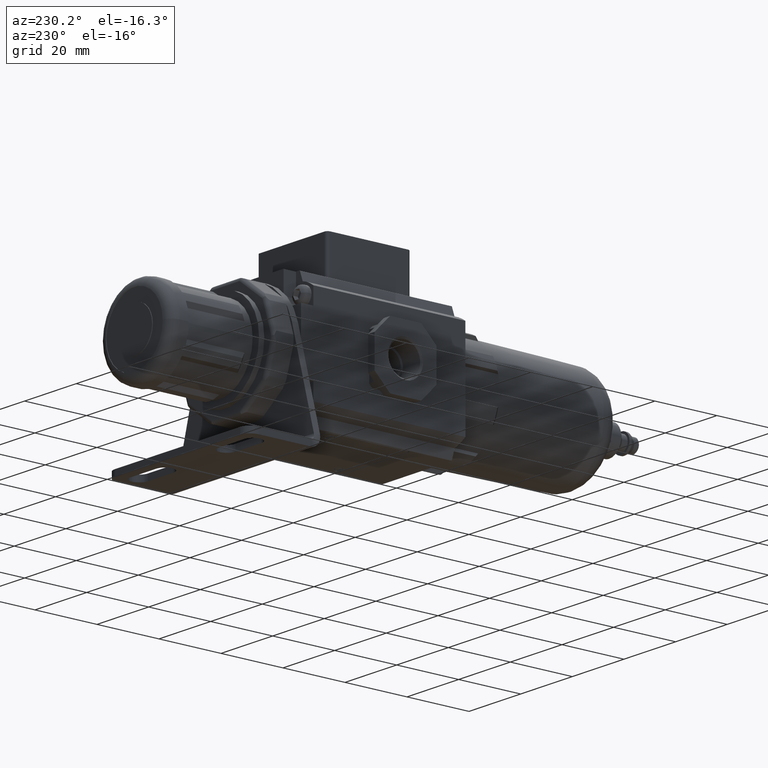
[diagram: clean part render]
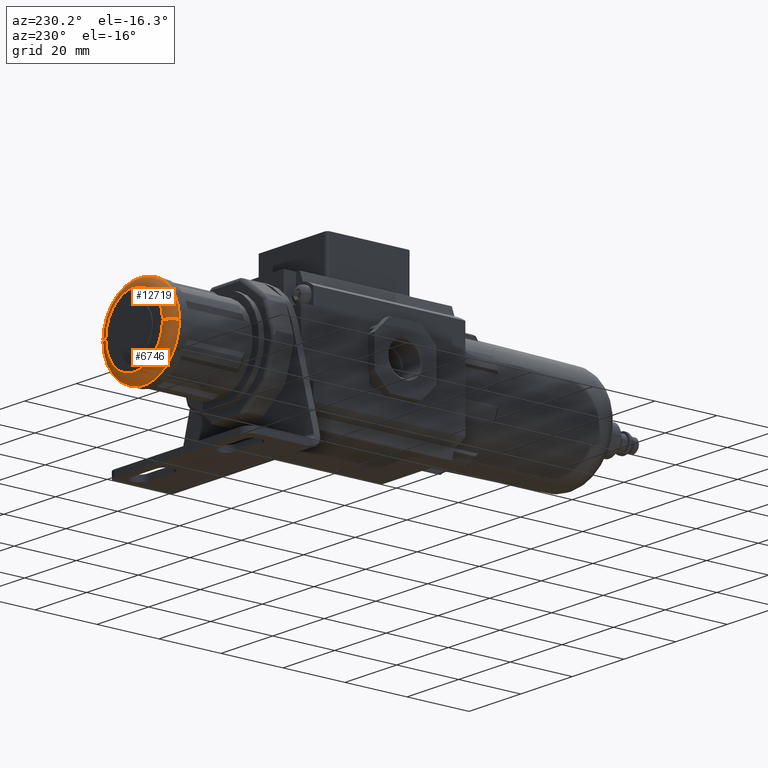
[diagram: same view with one multi-face feature highlighted, each face labeled with its STEP entity id]
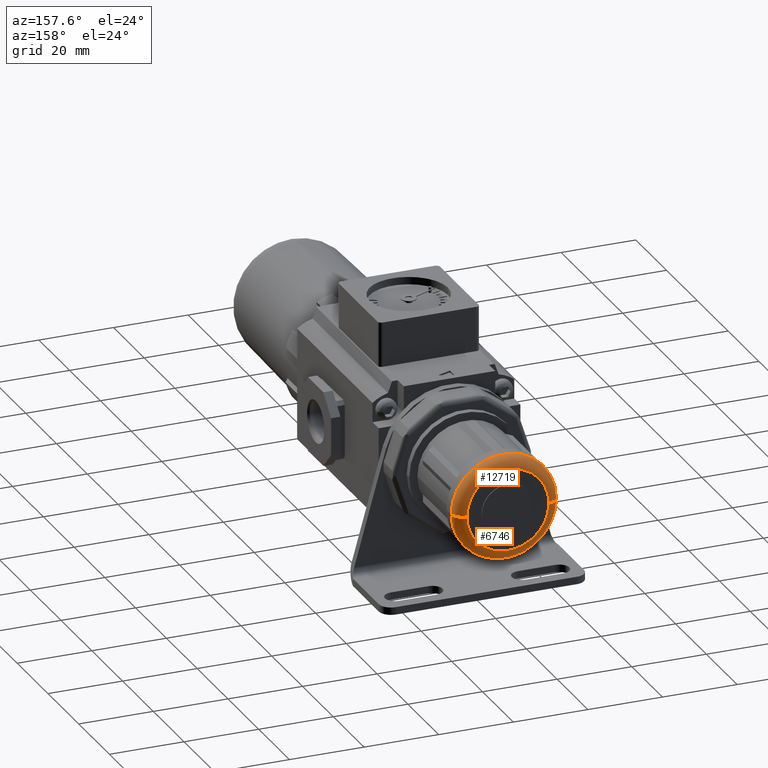
[diagram: same view with one multi-face feature highlighted, each face labeled with its STEP entity id]
A machine part, auxiliary view. The highlighted faces form ONE feature: a constant-radius fillet chain: 2 tangent blend faces with common blend radius 3 mm. The faces share edges in the B-rep.
A second angle (auxiliary view) of the same feature is appended — it is thin or edge-on in the first view.
Their STEP definitions:
[1] entity #12719 (Torus):
#124 = CARTESIAN_POINT ( 'NONE',  ( -2.373832125020894300E-014, 64.99999999999998600, 0.0000000000000000000 ) ) ;
#722 = EDGE_CURVE ( 'NONE', #13101, #8010, #13110, .T. ) ;
#1798 = ORIENTED_EDGE ( 'NONE', *, *, #15078, .F. ) ;
#1799 = DIRECTION ( 'NONE',  ( 3.652049423109068300E-016, -1.000000000000000000, -0.0000000000000000000 ) ) ;
#2000 = CARTESIAN_POINT ( 'NONE',  ( -11.00000000000002300, 64.99999999999998600, 0.0000000000000000000 ) ) ;
#2810 = AXIS2_PLACEMENT_3D ( 'NONE', #124, #6442, #9011 ) ;
#2891 = FACE_OUTER_BOUND ( 'NONE', #11451, .T. ) ;
#2937 = VERTEX_POINT ( 'NONE', #8562 ) ;
#3280 = DIRECTION ( 'NONE',  ( -1.000000000000000000, 0.0000000000000000000, 0.0000000000000000000 ) ) ;
#3476 = CARTESIAN_POINT ( 'NONE',  ( -11.00000000000002300, 67.99999999999998600, 0.0000000000000000000 ) ) ;
#3707 = VERTEX_POINT ( 'NONE', #14821 ) ;
#3740 = AXIS2_PLACEMENT_3D ( 'NONE', #2000, #10889, #3280 ) ;
#4070 = CARTESIAN_POINT ( 'NONE',  ( 10.99999999999997500, 64.99999999999998600, 1.347111479062088400E-015 ) ) ;
#4832 = AXIS2_PLACEMENT_3D ( 'NONE', #4070, #12975, #5334 ) ;
#5334 = DIRECTION ( 'NONE',  ( 1.000000000000000000, 0.0000000000000000000, 1.224646799147353500E-016 ) ) ;
#6442 = DIRECTION ( 'NONE',  ( -3.652049423109068300E-016, 1.000000000000000000, 0.0000000000000000000 ) ) ;
#6813 = DIRECTION ( 'NONE',  ( -3.652049423109068300E-016, 1.000000000000000000, 0.0000000000000000000 ) ) ;
#7729 = ORIENTED_EDGE ( 'NONE', *, *, #14497, .T. ) ;
#8010 = VERTEX_POINT ( 'NONE', #3476 ) ;
#8562 = CARTESIAN_POINT ( 'NONE',  ( 10.99999999999997500, 67.99999999999998600, 1.347111479062088400E-015 ) ) ;
#9011 = DIRECTION ( 'NONE',  ( -1.000000000000000000, -3.652049423109068300E-016, 0.0000000000000000000 ) ) ;
#9407 = CARTESIAN_POINT ( 'NONE',  ( -2.373832125020894300E-014, 64.99999999999998600, 0.0000000000000000000 ) ) ;
#10260 = AXIS2_PLACEMENT_3D ( 'NONE', #9407, #1799, #10680 ) ;
#10680 = DIRECTION ( 'NONE',  ( -1.000000000000000000, 0.0000000000000000000, 0.0000000000000000000 ) ) ;
#10889 = DIRECTION ( 'NONE',  ( -0.0000000000000000000, 0.0000000000000000000, -1.000000000000000000 ) ) ;
#11252 = ORIENTED_EDGE ( 'NONE', *, *, #12346, .F. ) ;
#11451 = EDGE_LOOP ( 'NONE', ( #11252, #7729, #1798, #13897 ) ) ;
#11885 = AXIS2_PLACEMENT_3D ( 'NONE', #14415, #6813, #15707 ) ;
#12221 = CARTESIAN_POINT ( 'NONE',  ( -14.00000000000002300, 64.99999999999998600, 0.0000000000000000000 ) ) ;
#12346 = EDGE_CURVE ( 'NONE', #3707, #13101, #14204, .T. ) ;
#12642 = TOROIDAL_SURFACE ( 'NONE', #2810, 11.00000000000000000, 3.000000000000000000 ) ;
#12719 = ADVANCED_FACE ( 'NONE', ( #2891 ), #12642, .T. ) ;
#12809 = CIRCLE ( 'NONE', #4832, 2.999999999999999100 ) ;
#12975 = DIRECTION ( 'NONE',  ( -1.224646799147353200E-016, -4.472470636338458500E-032, 1.000000000000000000 ) ) ;
#13101 = VERTEX_POINT ( 'NONE', #12221 ) ;
#13110 = CIRCLE ( 'NONE', #3740, 2.999999999999999100 ) ;
#13759 = CIRCLE ( 'NONE', #11885, 11.00000000000000000 ) ;
#13897 = ORIENTED_EDGE ( 'NONE', *, *, #722, .F. ) ;
#14204 = CIRCLE ( 'NONE', #10260, 14.00000000000000000 ) ;
#14415 = CARTESIAN_POINT ( 'NONE',  ( -2.483393607714166200E-014, 67.99999999999998600, 0.0000000000000000000 ) ) ;
#14497 = EDGE_CURVE ( 'NONE', #3707, #2937, #12809, .T. ) ;
#14821 = CARTESIAN_POINT ( 'NONE',  ( 13.99999999999997500, 64.99999999999998600, 1.714505518806294600E-015 ) ) ;
#15078 = EDGE_CURVE ( 'NONE', #8010, #2937, #13759, .T. ) ;
#15707 = DIRECTION ( 'NONE',  ( -1.000000000000000000, 0.0000000000000000000, 0.0000000000000000000 ) ) ;
[2] entity #6746 (Torus):
#722 = EDGE_CURVE ( 'NONE', #13101, #8010, #13110, .T. ) ;
#1852 = ORIENTED_EDGE ( 'NONE', *, *, #13211, .F. ) ;
#1999 = EDGE_CURVE ( 'NONE', #13101, #3707, #15025, .T. ) ;
#2000 = CARTESIAN_POINT ( 'NONE',  ( -11.00000000000002300, 64.99999999999998600, 0.0000000000000000000 ) ) ;
#2937 = VERTEX_POINT ( 'NONE', #8562 ) ;
#3280 = DIRECTION ( 'NONE',  ( -1.000000000000000000, 0.0000000000000000000, 0.0000000000000000000 ) ) ;
#3396 = TOROIDAL_SURFACE ( 'NONE', #7265, 11.00000000000000000, 3.000000000000000000 ) ;
#3476 = CARTESIAN_POINT ( 'NONE',  ( -11.00000000000002300, 67.99999999999998600, 0.0000000000000000000 ) ) ;
#3707 = VERTEX_POINT ( 'NONE', #14821 ) ;
#3740 = AXIS2_PLACEMENT_3D ( 'NONE', #2000, #10889, #3280 ) ;
#4070 = CARTESIAN_POINT ( 'NONE',  ( 10.99999999999997500, 64.99999999999998600, 1.347111479062088400E-015 ) ) ;
#4312 = DIRECTION ( 'NONE',  ( 3.652049423109068300E-016, -1.000000000000000000, -0.0000000000000000000 ) ) ;
#4775 = DIRECTION ( 'NONE',  ( -3.652049423109068300E-016, 1.000000000000000000, 0.0000000000000000000 ) ) ;
#4832 = AXIS2_PLACEMENT_3D ( 'NONE', #4070, #12975, #5334 ) ;
#5037 = EDGE_LOOP ( 'NONE', ( #11550, #9406, #13811, #1852 ) ) ;
#5334 = DIRECTION ( 'NONE',  ( 1.000000000000000000, 0.0000000000000000000, 1.224646799147353500E-016 ) ) ;
#5377 = DIRECTION ( 'NONE',  ( -1.000000000000000000, -3.652049423109068300E-016, 0.0000000000000000000 ) ) ;
#6746 = ADVANCED_FACE ( 'NONE', ( #6778 ), #3396, .T. ) ;
#6778 = FACE_OUTER_BOUND ( 'NONE', #5037, .T. ) ;
#7265 = AXIS2_PLACEMENT_3D ( 'NONE', #13010, #15483, #5377 ) ;
#8010 = VERTEX_POINT ( 'NONE', #3476 ) ;
#8562 = CARTESIAN_POINT ( 'NONE',  ( 10.99999999999997500, 67.99999999999998600, 1.347111479062088400E-015 ) ) ;
#9406 = ORIENTED_EDGE ( 'NONE', *, *, #1999, .F. ) ;
#10889 = DIRECTION ( 'NONE',  ( -0.0000000000000000000, 0.0000000000000000000, -1.000000000000000000 ) ) ;
#10975 = AXIS2_PLACEMENT_3D ( 'NONE', #11946, #4312, #13219 ) ;
#11550 = ORIENTED_EDGE ( 'NONE', *, *, #14497, .F. ) ;
#11946 = CARTESIAN_POINT ( 'NONE',  ( -2.373832125020894300E-014, 64.99999999999998600, 0.0000000000000000000 ) ) ;
#12221 = CARTESIAN_POINT ( 'NONE',  ( -14.00000000000002300, 64.99999999999998600, 0.0000000000000000000 ) ) ;
#12414 = CARTESIAN_POINT ( 'NONE',  ( -2.483393607714166200E-014, 67.99999999999998600, 0.0000000000000000000 ) ) ;
#12809 = CIRCLE ( 'NONE', #4832, 2.999999999999999100 ) ;
#12975 = DIRECTION ( 'NONE',  ( -1.224646799147353200E-016, -4.472470636338458500E-032, 1.000000000000000000 ) ) ;
#13010 = CARTESIAN_POINT ( 'NONE',  ( -2.373832125020894300E-014, 64.99999999999998600, 0.0000000000000000000 ) ) ;
#13101 = VERTEX_POINT ( 'NONE', #12221 ) ;
#13110 = CIRCLE ( 'NONE', #3740, 2.999999999999999100 ) ;
#13211 = EDGE_CURVE ( 'NONE', #2937, #8010, #15975, .T. ) ;
#13219 = DIRECTION ( 'NONE',  ( -1.000000000000000000, 0.0000000000000000000, 0.0000000000000000000 ) ) ;
#13673 = DIRECTION ( 'NONE',  ( -1.000000000000000000, 0.0000000000000000000, 0.0000000000000000000 ) ) ;
#13811 = ORIENTED_EDGE ( 'NONE', *, *, #722, .T. ) ;
#14497 = EDGE_CURVE ( 'NONE', #3707, #2937, #12809, .T. ) ;
#14821 = CARTESIAN_POINT ( 'NONE',  ( 13.99999999999997500, 64.99999999999998600, 1.714505518806294600E-015 ) ) ;
#15025 = CIRCLE ( 'NONE', #10975, 14.00000000000000000 ) ;
#15483 = DIRECTION ( 'NONE',  ( -3.652049423109068300E-016, 1.000000000000000000, 0.0000000000000000000 ) ) ;
#15975 = CIRCLE ( 'NONE', #16106, 11.00000000000000000 ) ;
#16106 = AXIS2_PLACEMENT_3D ( 'NONE', #12414, #4775, #13673 ) ;